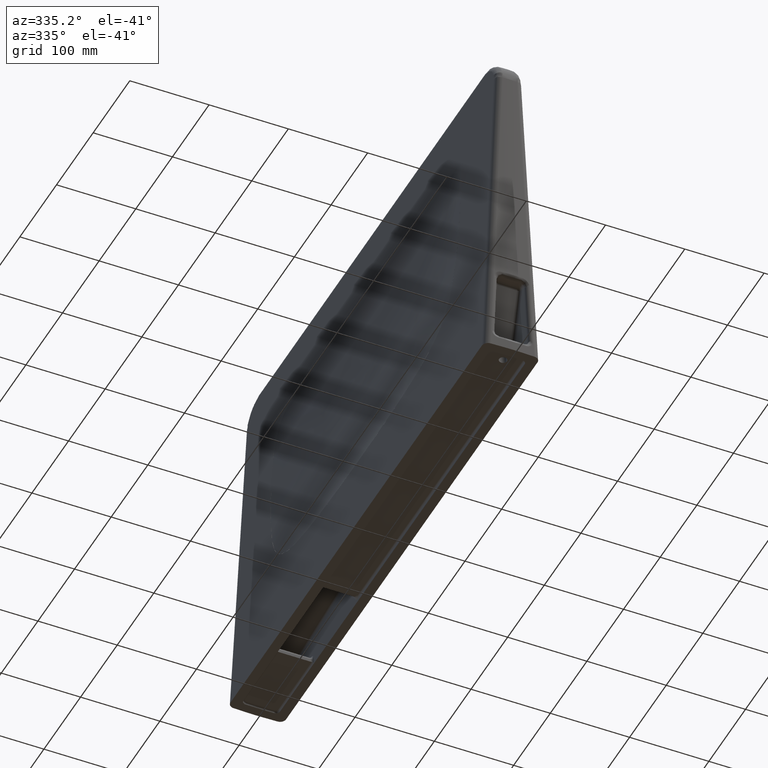
[diagram: clean part render]
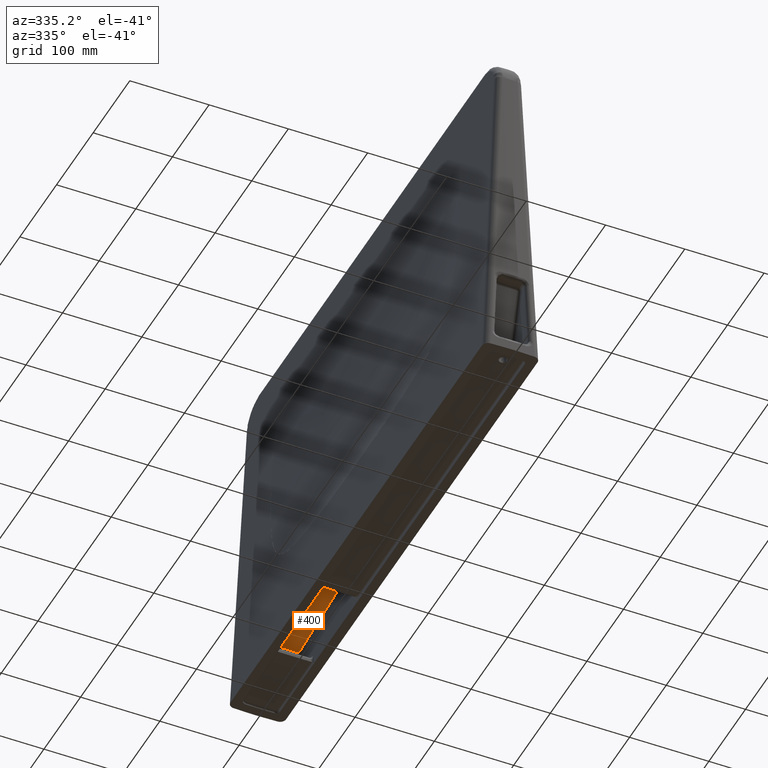
[diagram: same view with one face highlighted and labeled with its STEP entity id]
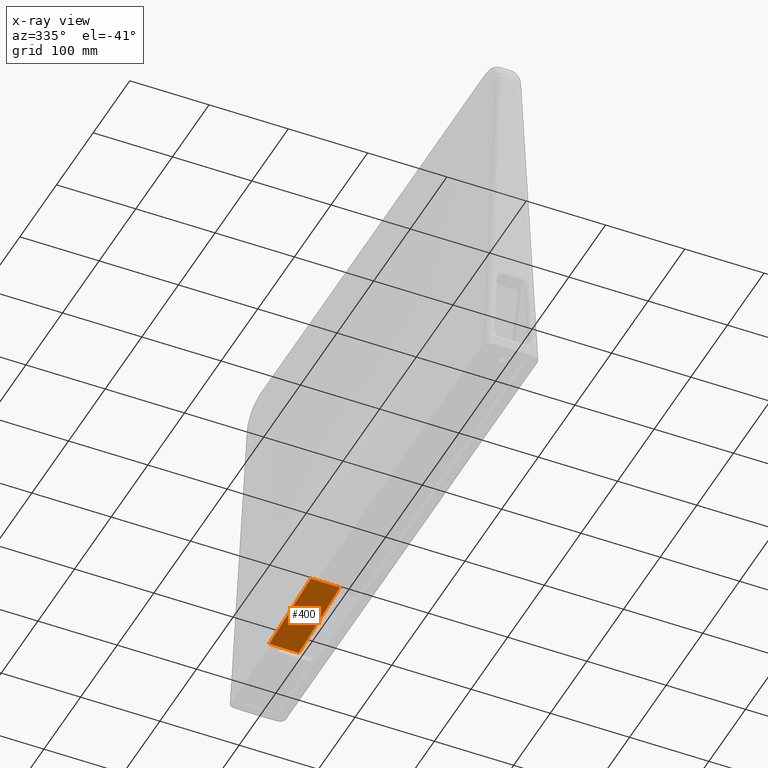
[diagram: x-ray of the same camera — body ghosted, the highlighted face saturated]
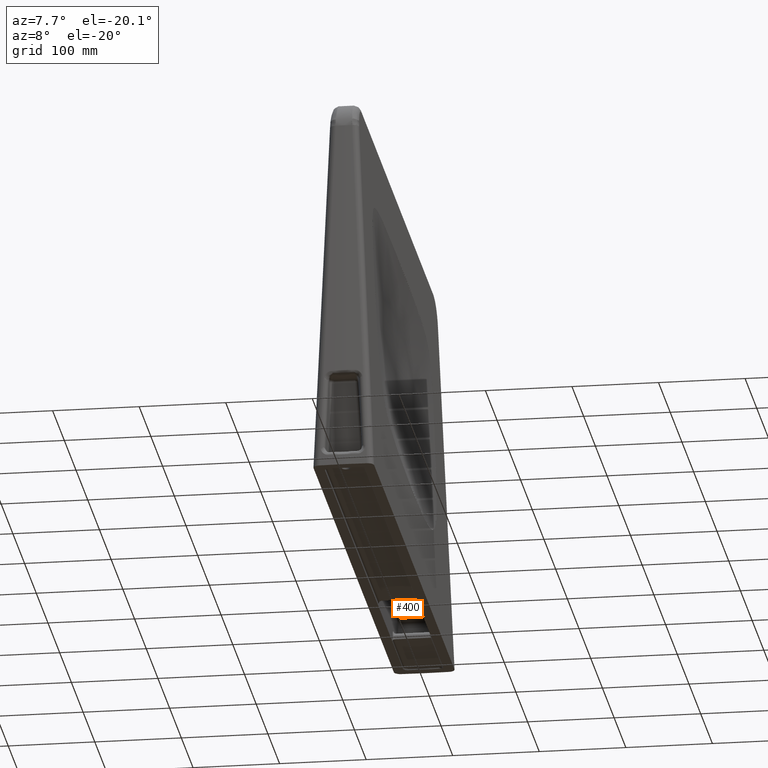
[diagram: same view with one face highlighted and labeled with its STEP entity id]
A machine part, auxiliary view. The second image highlights one B-rep face of the part: STEP entity #400.
The next image is the same camera in x-ray: the body ghosted, the highlighted face saturated — about 0% of this face is hidden behind the body in this view.
A second angle (auxiliary view) of the same face is appended — the face is thin or edge-on in the first view.
In plain terms, the highlighted planar face has unit normal (-0, -0.0872, -0.9962).
Its self-contained STEP definition (entity closure, byte-faithful):
#400=ADVANCED_FACE('',(#542),#466,.T.);
#466=PLANE('',#2151);
#542=FACE_OUTER_BOUND('',#669,.T.);
#669=EDGE_LOOP('',(#1139,#1140,#1141,#1142));
#1139=ORIENTED_EDGE('',*,*,#1695,.T.);
#1140=ORIENTED_EDGE('',*,*,#1696,.T.);
#1141=ORIENTED_EDGE('',*,*,#1697,.T.);
#1142=ORIENTED_EDGE('',*,*,#1698,.T.);
#1463=VERTEX_POINT('',#4090);
#1464=VERTEX_POINT('',#4091);
#1465=VERTEX_POINT('',#4093);
#1466=VERTEX_POINT('',#4095);
#1695=EDGE_CURVE('',#1463,#1464,#1865,.T.);
#1696=EDGE_CURVE('',#1464,#1465,#1866,.T.);
#1697=EDGE_CURVE('',#1465,#1466,#1867,.T.);
#1698=EDGE_CURVE('',#1466,#1463,#1868,.T.);
#1865=LINE('',#4089,#1986);
#1866=LINE('',#4092,#1987);
#1867=LINE('',#4094,#1988);
#1868=LINE('',#4096,#1989);
#1986=VECTOR('',#2631,1.);
#1987=VECTOR('',#2632,1.);
#1988=VECTOR('',#2633,1.);
#1989=VECTOR('',#2634,1.);
#2151=AXIS2_PLACEMENT_3D('',#4097,#2635,#2636);
#2631=DIRECTION('',(-1.,-6.06640003984757E-016,4.54980002988568E-016));
#2632=DIRECTION('',(-0.00304353150603095,0.996190084163462,-0.0871553390812391));
#2633=DIRECTION('',(1.,3.78452851616816E-016,-4.3501621399411E-016));
#2634=DIRECTION('',(-0.00304353150603096,-0.996190084163462,0.0871553390812391));
#2635=DIRECTION('',(-4.00376506587244E-016,-0.0871557427476582,-0.996194698091746));
#2636=DIRECTION('',(0.,0.996194698091746,-0.0871557427476582));
#4089=CARTESIAN_POINT('',(77.9985201822213,-133.532137649614,24.4968060846322));
#4090=CARTESIAN_POINT('',(119.300152132745,-133.532137649614,24.4968060846321));
#4091=CARTESIAN_POINT('',(82.4498478672553,-133.532137649614,24.4968060846322));
#4092=CARTESIAN_POINT('',(82.1039249446696,-20.3067661750993,14.5908696571006));
#4093=CARTESIAN_POINT('',(82.1039517841312,-20.3155511032016,14.5916382387195));
#4094=CARTESIAN_POINT('',(77.9985201822213,-20.3155511032016,14.5916382387195));
#4095=CARTESIAN_POINT('',(119.646048215869,-20.3155511032016,14.5916382387194));
#4096=CARTESIAN_POINT('',(119.300178972206,-133.523352721511,24.4960375030133));
#4097=CARTESIAN_POINT('',(77.9985201822213,-139.283670420699,25.));